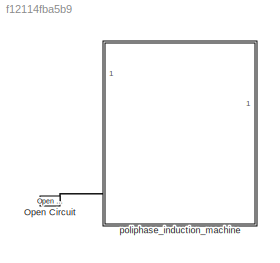
MODEL slx_f12114fba5b9
KIND library
CONFIG AbsTol = auto
CONFIG EnableMultiTasking = off
CONFIG FixedStep = auto
CONFIG MaxStep = auto
CONFIG MinStep = auto
CONFIG RelTol = 1e-3
CONFIG SampleTimeConstraint = Unconstrained
CONFIG SolverName = VariableStepAuto
CONFIG StartTime = 0.0
CONFIG StopTime = 10.0
BLOCK [Reference] Open Circuit  REF=fl_lib/Electrical/Electrical Elements/Open Circuit
  SourceBlock = fl_lib/Electrical/Electrical Elements/Open Circuit
  SourceType = Open Circuit
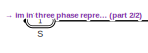
[diagram: poliphase_induction_machine - part 1/2, top left region]
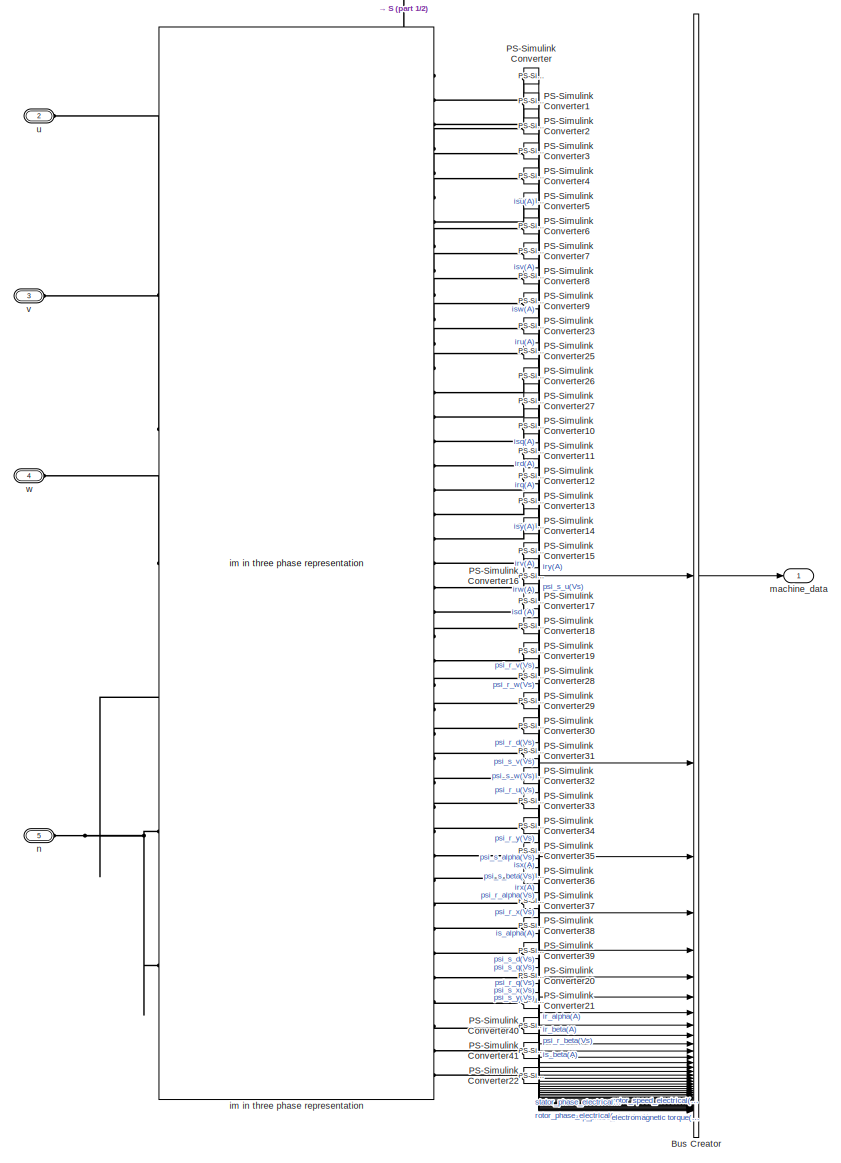
[diagram: poliphase_induction_machine - part 2/2, most of the canvas]
BLOCK [SubSystem] poliphase_induction_machine
BLOCK [BusCreator] poliphase_induction_machine/Bus Creator
  DisplayOption = bar
  InheritFromInputs = on
  Inputs = 41
BLOCK [Reference] poliphase_induction_machine/PS-Simulink Converter  REF=nesl_utility/PS-Simulink
Converter
  SourceBlock = nesl_utility/PS-Simulink\nConverter
  SourceType = PS-Simulink\nConverter
BLOCK [Reference] poliphase_induction_machine/PS-Simulink Converter1  REF=nesl_utility/PS-Simulink
Converter
  SourceBlock = nesl_utility/PS-Simulink\nConverter
  SourceType = PS-Simulink\nConverter
BLOCK [Reference] poliphase_induction_machine/PS-Simulink Converter10  REF=nesl_utility/PS-Simulink
Converter
  SourceBlock = nesl_utility/PS-Simulink\nConverter
  SourceType = PS-Simulink\nConverter
BLOCK [Reference] poliphase_induction_machine/PS-Simulink Converter11  REF=nesl_utility/PS-Simulink
Converter
  SourceBlock = nesl_utility/PS-Simulink\nConverter
  SourceType = PS-Simulink\nConverter
BLOCK [Reference] poliphase_induction_machine/PS-Simulink Converter12  REF=nesl_utility/PS-Simulink
Converter
  SourceBlock = nesl_utility/PS-Simulink\nConverter
  SourceType = PS-Simulink\nConverter
BLOCK [Reference] poliphase_induction_machine/PS-Simulink Converter13  REF=nesl_utility/PS-Simulink
Converter
  SourceBlock = nesl_utility/PS-Simulink\nConverter
  SourceType = PS-Simulink\nConverter
BLOCK [Reference] poliphase_induction_machine/PS-Simulink Converter14  REF=nesl_utility/PS-Simulink
Converter
  SourceBlock = nesl_utility/PS-Simulink\nConverter
  SourceType = PS-Simulink\nConverter
BLOCK [Reference] poliphase_induction_machine/PS-Simulink Converter15  REF=nesl_utility/PS-Simulink
Converter
  SourceBlock = nesl_utility/PS-Simulink\nConverter
  SourceType = PS-Simulink\nConverter
BLOCK [Reference] poliphase_induction_machine/PS-Simulink Converter16  REF=nesl_utility/PS-Simulink
Converter
  SourceBlock = nesl_utility/PS-Simulink\nConverter
  SourceType = PS-Simulink\nConverter
BLOCK [Reference] poliphase_induction_machine/PS-Simulink Converter17  REF=nesl_utility/PS-Simulink
Converter
  SourceBlock = nesl_utility/PS-Simulink\nConverter
  SourceType = PS-Simulink\nConverter
BLOCK [Reference] poliphase_induction_machine/PS-Simulink Converter18  REF=nesl_utility/PS-Simulink
Converter
  SourceBlock = nesl_utility/PS-Simulink\nConverter
  SourceType = PS-Simulink\nConverter
BLOCK [Reference] poliphase_induction_machine/PS-Simulink Converter19  REF=nesl_utility/PS-Simulink
Converter
  SourceBlock = nesl_utility/PS-Simulink\nConverter
  SourceType = PS-Simulink\nConverter
BLOCK [Reference] poliphase_induction_machine/PS-Simulink Converter2  REF=nesl_utility/PS-Simulink
Converter
  SourceBlock = nesl_utility/PS-Simulink\nConverter
  SourceType = PS-Simulink\nConverter
BLOCK [Reference] poliphase_induction_machine/PS-Simulink Converter20  REF=nesl_utility/PS-Simulink
Converter
  SourceBlock = nesl_utility/PS-Simulink\nConverter
  SourceType = PS-Simulink\nConverter
BLOCK [Reference] poliphase_induction_machine/PS-Simulink Converter21  REF=nesl_utility/PS-Simulink
Converter
  SourceBlock = nesl_utility/PS-Simulink\nConverter
  SourceType = PS-Simulink\nConverter
BLOCK [Reference] poliphase_induction_machine/PS-Simulink Converter22  REF=nesl_utility/PS-Simulink
Converter
  SourceBlock = nesl_utility/PS-Simulink\nConverter
  SourceType = PS-Simulink\nConverter
BLOCK [Reference] poliphase_induction_machine/PS-Simulink Converter23  REF=nesl_utility/PS-Simulink
Converter
  SourceBlock = nesl_utility/PS-Simulink\nConverter
  SourceType = PS-Simulink\nConverter
BLOCK [Reference] poliphase_induction_machine/PS-Simulink Converter25  REF=nesl_utility/PS-Simulink
Converter
  SourceBlock = nesl_utility/PS-Simulink\nConverter
  SourceType = PS-Simulink\nConverter
BLOCK [Reference] poliphase_induction_machine/PS-Simulink Converter26  REF=nesl_utility/PS-Simulink
Converter
  SourceBlock = nesl_utility/PS-Simulink\nConverter
  SourceType = PS-Simulink\nConverter
BLOCK [Reference] poliphase_induction_machine/PS-Simulink Converter27  REF=nesl_utility/PS-Simulink
Converter
  SourceBlock = nesl_utility/PS-Simulink\nConverter
  SourceType = PS-Simulink\nConverter
BLOCK [Reference] poliphase_induction_machine/PS-Simulink Converter28  REF=nesl_utility/PS-Simulink
Converter
  SourceBlock = nesl_utility/PS-Simulink\nConverter
  SourceType = PS-Simulink\nConverter
BLOCK [Reference] poliphase_induction_machine/PS-Simulink Converter29  REF=nesl_utility/PS-Simulink
Converter
  SourceBlock = nesl_utility/PS-Simulink\nConverter
  SourceType = PS-Simulink\nConverter
BLOCK [Reference] poliphase_induction_machine/PS-Simulink Converter3  REF=nesl_utility/PS-Simulink
Converter
  SourceBlock = nesl_utility/PS-Simulink\nConverter
  SourceType = PS-Simulink\nConverter
BLOCK [Reference] poliphase_induction_machine/PS-Simulink Converter30  REF=nesl_utility/PS-Simulink
Converter
  SourceBlock = nesl_utility/PS-Simulink\nConverter
  SourceType = PS-Simulink\nConverter
BLOCK [Reference] poliphase_induction_machine/PS-Simulink Converter31  REF=nesl_utility/PS-Simulink
Converter
  SourceBlock = nesl_utility/PS-Simulink\nConverter
  SourceType = PS-Simulink\nConverter
BLOCK [Reference] poliphase_induction_machine/PS-Simulink Converter32  REF=nesl_utility/PS-Simulink
Converter
  SourceBlock = nesl_utility/PS-Simulink\nConverter
  SourceType = PS-Simulink\nConverter
BLOCK [Reference] poliphase_induction_machine/PS-Simulink Converter33  REF=nesl_utility/PS-Simulink
Converter
  SourceBlock = nesl_utility/PS-Simulink\nConverter
  SourceType = PS-Simulink\nConverter
BLOCK [Reference] poliphase_induction_machine/PS-Simulink Converter34  REF=nesl_utility/PS-Simulink
Converter
  SourceBlock = nesl_utility/PS-Simulink\nConverter
  SourceType = PS-Simulink\nConverter
BLOCK [Reference] poliphase_induction_machine/PS-Simulink Converter35  REF=nesl_utility/PS-Simulink
Converter
  SourceBlock = nesl_utility/PS-Simulink\nConverter
  SourceType = PS-Simulink\nConverter
BLOCK [Reference] poliphase_induction_machine/PS-Simulink Converter36  REF=nesl_utility/PS-Simulink
Converter
  SourceBlock = nesl_utility/PS-Simulink\nConverter
  SourceType = PS-Simulink\nConverter
BLOCK [Reference] poliphase_induction_machine/PS-Simulink Converter37  REF=nesl_utility/PS-Simulink
Converter
  SourceBlock = nesl_utility/PS-Simulink\nConverter
  SourceType = PS-Simulink\nConverter
BLOCK [Reference] poliphase_induction_machine/PS-Simulink Converter38  REF=nesl_utility/PS-Simulink
Converter
  SourceBlock = nesl_utility/PS-Simulink\nConverter
  SourceType = PS-Simulink\nConverter
BLOCK [Reference] poliphase_induction_machine/PS-Simulink Converter39  REF=nesl_utility/PS-Simulink
Converter
  SourceBlock = nesl_utility/PS-Simulink\nConverter
  SourceType = PS-Simulink\nConverter
BLOCK [Reference] poliphase_induction_machine/PS-Simulink Converter4  REF=nesl_utility/PS-Simulink
Converter
  SourceBlock = nesl_utility/PS-Simulink\nConverter
  SourceType = PS-Simulink\nConverter
BLOCK [Reference] poliphase_induction_machine/PS-Simulink Converter40  REF=nesl_utility/PS-Simulink
Converter
  SourceBlock = nesl_utility/PS-Simulink\nConverter
  SourceType = PS-Simulink\nConverter
BLOCK [Reference] poliphase_induction_machine/PS-Simulink Converter41  REF=nesl_utility/PS-Simulink
Converter
  SourceBlock = nesl_utility/PS-Simulink\nConverter
  SourceType = PS-Simulink\nConverter
BLOCK [Reference] poliphase_induction_machine/PS-Simulink Converter5  REF=nesl_utility/PS-Simulink
Converter
  SourceBlock = nesl_utility/PS-Simulink\nConverter
  SourceType = PS-Simulink\nConverter
BLOCK [Reference] poliphase_induction_machine/PS-Simulink Converter6  REF=nesl_utility/PS-Simulink
Converter
  SourceBlock = nesl_utility/PS-Simulink\nConverter
  SourceType = PS-Simulink\nConverter
BLOCK [Reference] poliphase_induction_machine/PS-Simulink Converter7  REF=nesl_utility/PS-Simulink
Converter
  SourceBlock = nesl_utility/PS-Simulink\nConverter
  SourceType = PS-Simulink\nConverter
BLOCK [Reference] poliphase_induction_machine/PS-Simulink Converter8  REF=nesl_utility/PS-Simulink
Converter
  SourceBlock = nesl_utility/PS-Simulink\nConverter
  SourceType = PS-Simulink\nConverter
BLOCK [Reference] poliphase_induction_machine/PS-Simulink Converter9  REF=nesl_utility/PS-Simulink
Converter
  SourceBlock = nesl_utility/PS-Simulink\nConverter
  SourceType = PS-Simulink\nConverter
BLOCK [PMIOPort] poliphase_induction_machine/S
  Side = Right
BLOCK [Reference] poliphase_induction_machine/im in three phase representation  REF=im_uvw_2_lib/im in three phase
representation
  SourceBlock = im_uvw_2_lib/im in three phase\nrepresentation
  SourceType = im in three phase\nrepresentation
BLOCK [Outport] poliphase_induction_machine/machine_data
BLOCK [PMIOPort] poliphase_induction_machine/n
  Port = 5
  Side = Left
BLOCK [PMIOPort] poliphase_induction_machine/u
  Port = 2
  Side = Left
BLOCK [PMIOPort] poliphase_induction_machine/v
  Port = 3
  Side = Left
BLOCK [PMIOPort] poliphase_induction_machine/w
  Port = 4
  Side = Left
LINE poliphase_induction_machine/Bus Creator:1 -> poliphase_induction_machine/machine_data:1
LINE poliphase_induction_machine/PS-Simulink Converter10:1 -> poliphase_induction_machine/Bus Creator:15
LINE poliphase_induction_machine/PS-Simulink Converter11:1 -> poliphase_induction_machine/Bus Creator:16
LINE poliphase_induction_machine/PS-Simulink Converter12:1 -> poliphase_induction_machine/Bus Creator:17
LINE poliphase_induction_machine/PS-Simulink Converter13:1 -> poliphase_induction_machine/Bus Creator:18
LINE poliphase_induction_machine/PS-Simulink Converter14:1 -> poliphase_induction_machine/Bus Creator:19
LINE poliphase_induction_machine/PS-Simulink Converter15:1 -> poliphase_induction_machine/Bus Creator:20
LINE poliphase_induction_machine/PS-Simulink Converter16:1 -> poliphase_induction_machine/Bus Creator:21
LINE poliphase_induction_machine/PS-Simulink Converter17:1 -> poliphase_induction_machine/Bus Creator:22
LINE poliphase_induction_machine/PS-Simulink Converter18:1 -> poliphase_induction_machine/Bus Creator:23
LINE poliphase_induction_machine/PS-Simulink Converter19:1 -> poliphase_induction_machine/Bus Creator:24
LINE poliphase_induction_machine/PS-Simulink Converter1:1 -> poliphase_induction_machine/Bus Creator:2
LINE poliphase_induction_machine/PS-Simulink Converter20:1 -> poliphase_induction_machine/Bus Creator:37
LINE poliphase_induction_machine/PS-Simulink Converter21:1 -> poliphase_induction_machine/Bus Creator:38
LINE poliphase_induction_machine/PS-Simulink Converter22:1 -> poliphase_induction_machine/Bus Creator:41
LINE poliphase_induction_machine/PS-Simulink Converter23:1 -> poliphase_induction_machine/Bus Creator:11
LINE poliphase_induction_machine/PS-Simulink Converter25:1 -> poliphase_induction_machine/Bus Creator:12
LINE poliphase_induction_machine/PS-Simulink Converter26:1 -> poliphase_induction_machine/Bus Creator:13
LINE poliphase_induction_machine/PS-Simulink Converter27:1 -> poliphase_induction_machine/Bus Creator:14
LINE poliphase_induction_machine/PS-Simulink Converter28:1 -> poliphase_induction_machine/Bus Creator:25
LINE poliphase_induction_machine/PS-Simulink Converter29:1 -> poliphase_induction_machine/Bus Creator:26
LINE poliphase_induction_machine/PS-Simulink Converter2:1 -> poliphase_induction_machine/Bus Creator:3
LINE poliphase_induction_machine/PS-Simulink Converter30:1 -> poliphase_induction_machine/Bus Creator:27
LINE poliphase_induction_machine/PS-Simulink Converter31:1 -> poliphase_induction_machine/Bus Creator:28
LINE poliphase_induction_machine/PS-Simulink Converter32:1 -> poliphase_induction_machine/Bus Creator:29
LINE poliphase_induction_machine/PS-Simulink Converter33:1 -> poliphase_induction_machine/Bus Creator:30
LINE poliphase_induction_machine/PS-Simulink Converter34:1 -> poliphase_induction_machine/Bus Creator:31
LINE poliphase_induction_machine/PS-Simulink Converter35:1 -> poliphase_induction_machine/Bus Creator:32
LINE poliphase_induction_machine/PS-Simulink Converter36:1 -> poliphase_induction_machine/Bus Creator:33
LINE poliphase_induction_machine/PS-Simulink Converter37:1 -> poliphase_induction_machine/Bus Creator:34
LINE poliphase_induction_machine/PS-Simulink Converter38:1 -> poliphase_induction_machine/Bus Creator:35
LINE poliphase_induction_machine/PS-Simulink Converter39:1 -> poliphase_induction_machine/Bus Creator:36
LINE poliphase_induction_machine/PS-Simulink Converter3:1 -> poliphase_induction_machine/Bus Creator:4
LINE poliphase_induction_machine/PS-Simulink Converter40:1 -> poliphase_induction_machine/Bus Creator:39
LINE poliphase_induction_machine/PS-Simulink Converter41:1 -> poliphase_induction_machine/Bus Creator:40
LINE poliphase_induction_machine/PS-Simulink Converter4:1 -> poliphase_induction_machine/Bus Creator:5
LINE poliphase_induction_machine/PS-Simulink Converter5:1 -> poliphase_induction_machine/Bus Creator:6
LINE poliphase_induction_machine/PS-Simulink Converter6:1 -> poliphase_induction_machine/Bus Creator:7
LINE poliphase_induction_machine/PS-Simulink Converter7:1 -> poliphase_induction_machine/Bus Creator:8
LINE poliphase_induction_machine/PS-Simulink Converter8:1 -> poliphase_induction_machine/Bus Creator:9
LINE poliphase_induction_machine/PS-Simulink Converter9:1 -> poliphase_induction_machine/Bus Creator:10
LINE poliphase_induction_machine/PS-Simulink Converter:1 -> poliphase_induction_machine/Bus Creator:1
PLINE Open Circuit:LConn1 -- poliphase_induction_machine:LConn4
PLINE poliphase_induction_machine/PS-Simulink Converter10:LConn1 -- poliphase_induction_machine/im in three phase representation:RConn16
PLINE poliphase_induction_machine/PS-Simulink Converter11:LConn1 -- poliphase_induction_machine/im in three phase representation:RConn17
PLINE poliphase_induction_machine/PS-Simulink Converter12:LConn1 -- poliphase_induction_machine/im in three phase representation:RConn18
PLINE poliphase_induction_machine/PS-Simulink Converter13:LConn1 -- poliphase_induction_machine/im in three phase representation:RConn19
PLINE poliphase_induction_machine/PS-Simulink Converter14:LConn1 -- poliphase_induction_machine/im in three phase representation:RConn20
PLINE poliphase_induction_machine/PS-Simulink Converter15:LConn1 -- poliphase_induction_machine/im in three phase representation:RConn21
PLINE poliphase_induction_machine/PS-Simulink Converter16:LConn1 -- poliphase_induction_machine/im in three phase representation:RConn22
PLINE poliphase_induction_machine/PS-Simulink Converter17:LConn1 -- poliphase_induction_machine/im in three phase representation:RConn23
PLINE poliphase_induction_machine/PS-Simulink Converter18:LConn1 -- poliphase_induction_machine/im in three phase representation:RConn24
PLINE poliphase_induction_machine/PS-Simulink Converter19:LConn1 -- poliphase_induction_machine/im in three phase representation:RConn25
PLINE poliphase_induction_machine/PS-Simulink Converter1:LConn1 -- poliphase_induction_machine/im in three phase representation:RConn3
PLINE poliphase_induction_machine/PS-Simulink Converter20:LConn1 -- poliphase_induction_machine/im in three phase representation:RConn38
PLINE poliphase_induction_machine/PS-Simulink Converter21:LConn1 -- poliphase_induction_machine/im in three phase representation:RConn39
PLINE poliphase_induction_machine/PS-Simulink Converter22:LConn1 -- poliphase_induction_machine/im in three phase representation:RConn42
PLINE poliphase_induction_machine/PS-Simulink Converter23:LConn1 -- poliphase_induction_machine/im in three phase representation:RConn12
PLINE poliphase_induction_machine/PS-Simulink Converter25:LConn1 -- poliphase_induction_machine/im in three phase representation:RConn13
PLINE poliphase_induction_machine/PS-Simulink Converter26:LConn1 -- poliphase_induction_machine/im in three phase representation:RConn14
PLINE poliphase_induction_machine/PS-Simulink Converter27:LConn1 -- poliphase_induction_machine/im in three phase representation:RConn15
PLINE poliphase_induction_machine/PS-Simulink Converter28:LConn1 -- poliphase_induction_machine/im in three phase representation:RConn26
PLINE poliphase_induction_machine/PS-Simulink Converter29:LConn1 -- poliphase_induction_machine/im in three phase representation:RConn27
PLINE poliphase_induction_machine/PS-Simulink Converter2:LConn1 -- poliphase_induction_machine/im in three phase representation:RConn4
PLINE poliphase_induction_machine/PS-Simulink Converter30:LConn1 -- poliphase_induction_machine/im in three phase representation:RConn28
PLINE poliphase_induction_machine/PS-Simulink Converter31:LConn1 -- poliphase_induction_machine/im in three phase representation:RConn29
PLINE poliphase_induction_machine/PS-Simulink Converter32:LConn1 -- poliphase_induction_machine/im in three phase representation:RConn30
PLINE poliphase_induction_machine/PS-Simulink Converter33:LConn1 -- poliphase_induction_machine/im in three phase representation:RConn31
PLINE poliphase_induction_machine/PS-Simulink Converter34:LConn1 -- poliphase_induction_machine/im in three phase representation:RConn32
PLINE poliphase_induction_machine/PS-Simulink Converter35:LConn1 -- poliphase_induction_machine/im in three phase representation:RConn33
PLINE poliphase_induction_machine/PS-Simulink Converter36:LConn1 -- poliphase_induction_machine/im in three phase representation:RConn34
PLINE poliphase_induction_machine/PS-Simulink Converter37:LConn1 -- poliphase_induction_machine/im in three phase representation:RConn35
PLINE poliphase_induction_machine/PS-Simulink Converter38:LConn1 -- poliphase_induction_machine/im in three phase representation:RConn36
PLINE poliphase_induction_machine/PS-Simulink Converter39:LConn1 -- poliphase_induction_machine/im in three phase representation:RConn37
PLINE poliphase_induction_machine/PS-Simulink Converter3:LConn1 -- poliphase_induction_machine/im in three phase representation:RConn5
PLINE poliphase_induction_machine/PS-Simulink Converter40:LConn1 -- poliphase_induction_machine/im in three phase representation:RConn40
PLINE poliphase_induction_machine/PS-Simulink Converter41:LConn1 -- poliphase_induction_machine/im in three phase representation:RConn41
PLINE poliphase_induction_machine/PS-Simulink Converter4:LConn1 -- poliphase_induction_machine/im in three phase representation:RConn6
PLINE poliphase_induction_machine/PS-Simulink Converter5:LConn1 -- poliphase_induction_machine/im in three phase representation:RConn7
PLINE poliphase_induction_machine/PS-Simulink Converter6:LConn1 -- poliphase_induction_machine/im in three phase representation:RConn8
PLINE poliphase_induction_machine/PS-Simulink Converter7:LConn1 -- poliphase_induction_machine/im in three phase representation:RConn9
PLINE poliphase_induction_machine/PS-Simulink Converter8:LConn1 -- poliphase_induction_machine/im in three phase representation:RConn10
PLINE poliphase_induction_machine/PS-Simulink Converter9:LConn1 -- poliphase_induction_machine/im in three phase representation:RConn11
PLINE poliphase_induction_machine/PS-Simulink Converter:LConn1 -- poliphase_induction_machine/im in three phase representation:RConn2
PLINE poliphase_induction_machine/S:RConn1 -- poliphase_induction_machine/im in three phase representation:RConn1
PLINE poliphase_induction_machine/im in three phase representation:LConn1 -- poliphase_induction_machine/u:RConn1
PLINE poliphase_induction_machine/im in three phase representation:LConn2 -- poliphase_induction_machine/v:RConn1
PLINE poliphase_induction_machine/im in three phase representation:LConn3 -- poliphase_induction_machine/w:RConn1
PNET net1: poliphase_induction_machine/im in three phase representation:LConn4 -- poliphase_induction_machine/im in three phase representation:LConn5 -- poliphase_induction_machine/im in three phase representation:LConn6 -- poliphase_induction_machine/n:RConn1
note: PNET lines group multi-terminal physical nets as a canonical sorted terminal list (undirected conserving connections); 2-terminal nets keep the pairwise PLINE form
